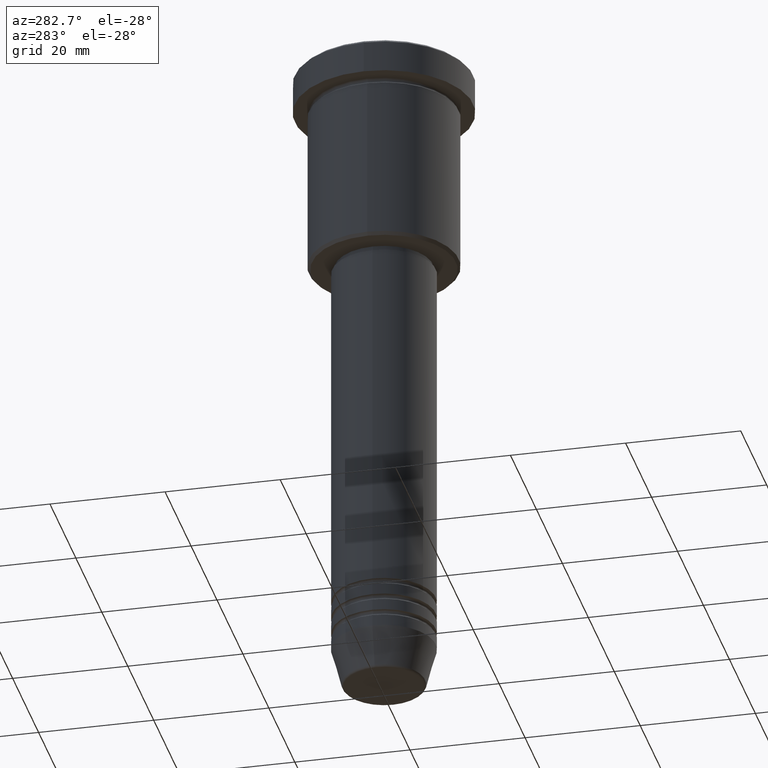
[diagram: clean part render]
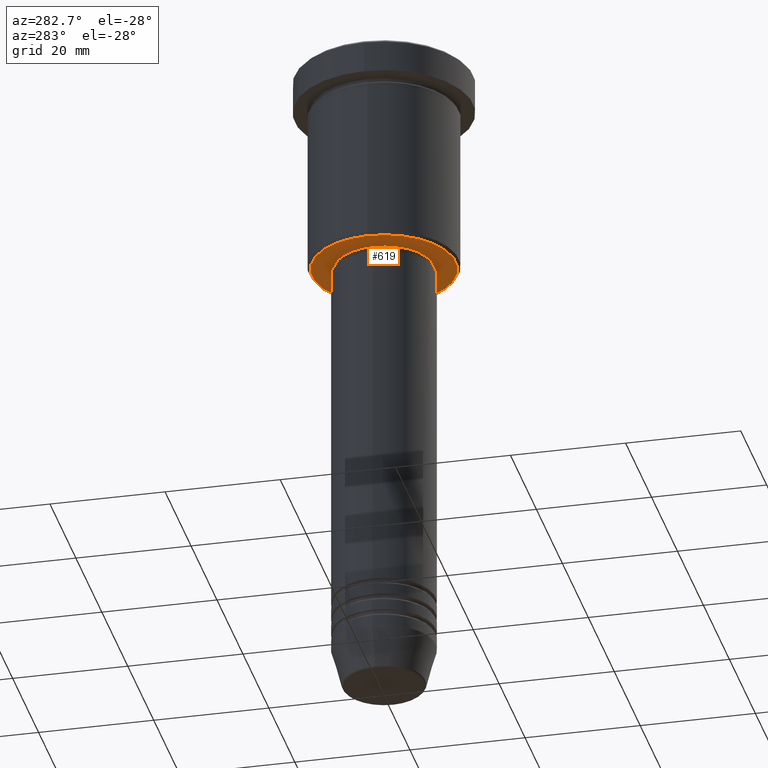
[diagram: same view with one face highlighted and labeled with its STEP entity id]
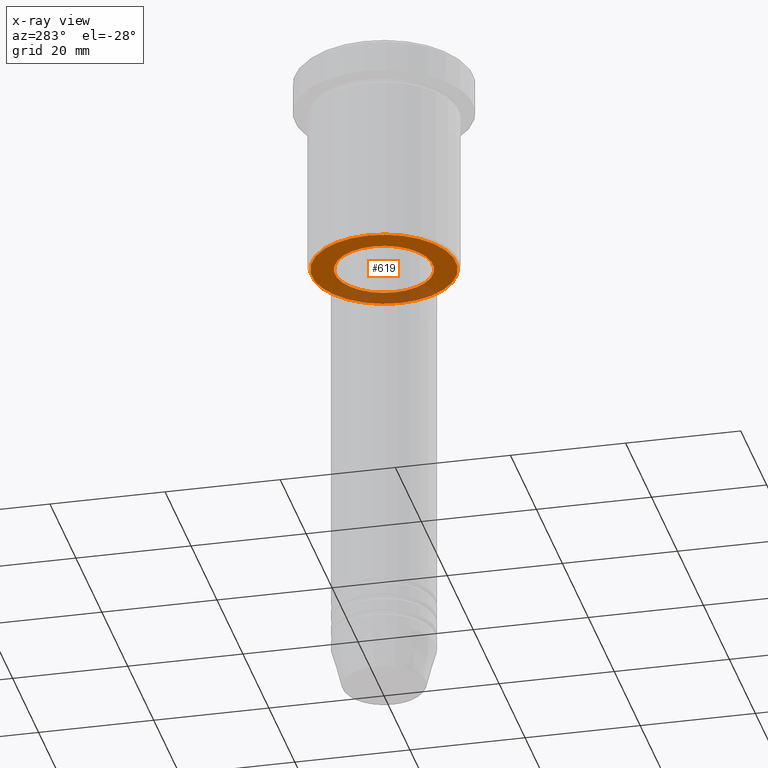
[diagram: x-ray of the same camera — body ghosted, the highlighted face saturated]
A machine part, auxiliary view. The second image highlights one B-rep face of the part: STEP entity #619.
The next image is the same camera in x-ray: the body ghosted, the highlighted face saturated — about 27% of this face is hidden behind the body in this view.
In plain terms, the highlighted planar face has unit normal (0, 0, -1).
Its self-contained STEP definition (entity closure, byte-faithful):
#9 = CIRCLE ( 'NONE', #985, 12.49999999999999645 ) ;
#12 = CIRCLE ( 'NONE', #690, 8.499999999999998224 ) ;
#17 = CARTESIAN_POINT ( 'NONE',  ( 12.49999999999999645, 0.000000000000000000, -36.00000000000000711 ) ) ;
#43 = EDGE_CURVE ( 'NONE', #558, #751, #983, .T. ) ;
#63 = CARTESIAN_POINT ( 'NONE',  ( 8.499999999999998224, 0.000000000000000000, -36.00000000000000711 ) ) ;
#72 = AXIS2_PLACEMENT_3D ( 'NONE', #285, #101, #997 ) ;
#89 = FACE_BOUND ( 'NONE', #325, .T. ) ;
#93 = CIRCLE ( 'NONE', #263, 8.499999999999998224 ) ;
#101 = DIRECTION ( 'NONE',  ( 0.000000000000000000, 0.000000000000000000, -1.000000000000000000 ) ) ;
#173 = DIRECTION ( 'NONE',  ( 1.000000000000000000, 0.000000000000000000, 0.000000000000000000 ) ) ;
#177 = DIRECTION ( 'NONE',  ( -0.000000000000000000, -0.000000000000000000, 1.000000000000000000 ) ) ;
#198 = ORIENTED_EDGE ( 'NONE', *, *, #211, .T. ) ;
#211 = EDGE_CURVE ( 'NONE', #862, #981, #93, .T. ) ;
#219 = ORIENTED_EDGE ( 'NONE', *, *, #1000, .T. ) ;
#224 = CARTESIAN_POINT ( 'NONE',  ( 0.000000000000000000, 0.000000000000000000, -36.00000000000000711 ) ) ;
#243 = EDGE_LOOP ( 'NONE', ( #989, #333 ) ) ;
#263 = AXIS2_PLACEMENT_3D ( 'NONE', #224, #295, #312 ) ;
#285 = CARTESIAN_POINT ( 'NONE',  ( 0.000000000000000000, 0.000000000000000000, -36.00000000000000711 ) ) ;
#289 = CARTESIAN_POINT ( 'NONE',  ( 0.000000000000000000, 13.00000000000000000, -36.00000000000000711 ) ) ;
#295 = DIRECTION ( 'NONE',  ( -0.000000000000000000, -0.000000000000000000, 1.000000000000000000 ) ) ;
#312 = DIRECTION ( 'NONE',  ( 1.000000000000000000, 0.000000000000000000, 0.000000000000000000 ) ) ;
#318 = EDGE_CURVE ( 'NONE', #751, #558, #9, .T. ) ;
#325 = EDGE_LOOP ( 'NONE', ( #198, #219 ) ) ;
#333 = ORIENTED_EDGE ( 'NONE', *, *, #43, .T. ) ;
#369 = CARTESIAN_POINT ( 'NONE',  ( 0.000000000000000000, 0.000000000000000000, -36.00000000000000711 ) ) ;
#549 = FACE_OUTER_BOUND ( 'NONE', #243, .T. ) ;
#558 = VERTEX_POINT ( 'NONE', #647 ) ;
#566 = DIRECTION ( 'NONE',  ( -1.000000000000000000, 0.000000000000000000, -0.000000000000000000 ) ) ;
#577 = DIRECTION ( 'NONE',  ( -1.000000000000000000, 0.000000000000000000, 0.000000000000000000 ) ) ;
#619 = ADVANCED_FACE ( 'NONE', ( #549, #89 ), #915, .T. ) ;
#647 = CARTESIAN_POINT ( 'NONE',  ( -12.49999999999999645, 1.561424668912875111E-15, -36.00000000000000711 ) ) ;
#690 = AXIS2_PLACEMENT_3D ( 'NONE', #369, #177, #173 ) ;
#735 = CARTESIAN_POINT ( 'NONE',  ( -8.499999999999998224, 1.040949779275249943E-15, -36.00000000000000711 ) ) ;
#743 = AXIS2_PLACEMENT_3D ( 'NONE', #289, #812, #566 ) ;
#751 = VERTEX_POINT ( 'NONE', #17 ) ;
#812 = DIRECTION ( 'NONE',  ( 0.000000000000000000, 0.000000000000000000, -1.000000000000000000 ) ) ;
#862 = VERTEX_POINT ( 'NONE', #63 ) ;
#915 = PLANE ( 'NONE',  #743 ) ;
#981 = VERTEX_POINT ( 'NONE', #735 ) ;
#983 = CIRCLE ( 'NONE', #72, 12.49999999999999645 ) ;
#985 = AXIS2_PLACEMENT_3D ( 'NONE', #1049, #1024, #577 ) ;
#989 = ORIENTED_EDGE ( 'NONE', *, *, #318, .T. ) ;
#997 = DIRECTION ( 'NONE',  ( -1.000000000000000000, 0.000000000000000000, 0.000000000000000000 ) ) ;
#1000 = EDGE_CURVE ( 'NONE', #981, #862, #12, .T. ) ;
#1024 = DIRECTION ( 'NONE',  ( 0.000000000000000000, 0.000000000000000000, -1.000000000000000000 ) ) ;
#1049 = CARTESIAN_POINT ( 'NONE',  ( 0.000000000000000000, 0.000000000000000000, -36.00000000000000711 ) ) ;